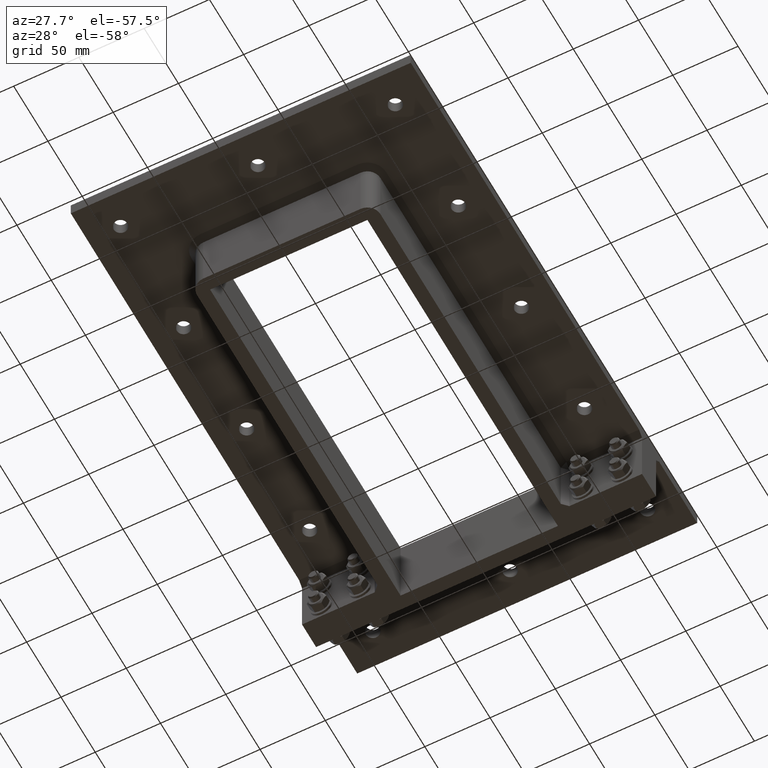
[diagram: clean part render]
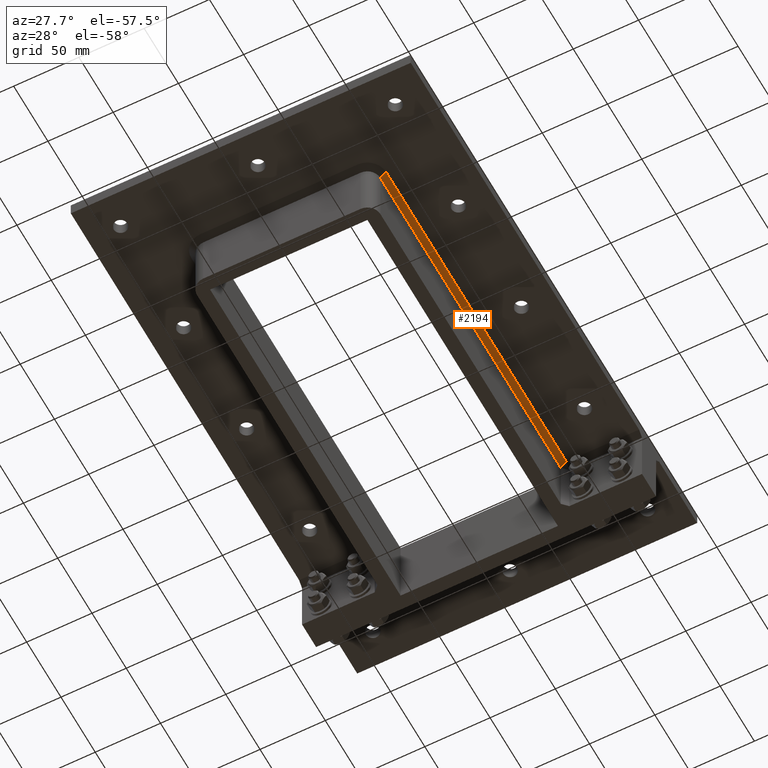
[diagram: same view with one face highlighted and labeled with its STEP entity id]
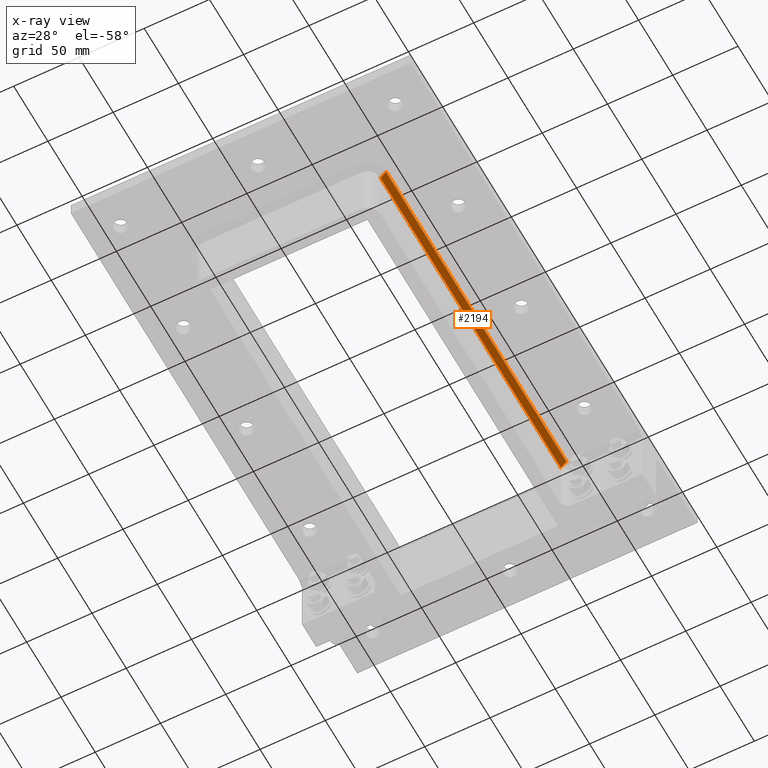
[diagram: x-ray of the same camera — body ghosted, the highlighted face saturated]
A machine part, auxiliary view. The second image highlights one B-rep face of the part: STEP entity #2194.
The next image is the same camera in x-ray: the body ghosted, the highlighted face saturated — about 0% of this face is hidden behind the body in this view.
In plain terms, the highlighted planar face has unit normal (0.7071, -0, -0.7071).
Its self-contained STEP definition (entity closure, byte-faithful):
#368=FACE_OUTER_BOUND('',#490,.T.);
#490=EDGE_LOOP('',(#1540,#1541,#1542,#1543));
#696=LINE('',#3425,#870);
#698=LINE('',#3430,#872);
#699=LINE('',#3431,#873);
#700=LINE('',#3432,#874);
#870=VECTOR('',#2751,10.);
#872=VECTOR('',#2755,10.);
#873=VECTOR('',#2756,10.);
#874=VECTOR('',#2757,10.);
#1041=VERTEX_POINT('',#3421);
#1043=VERTEX_POINT('',#3424);
#1044=VERTEX_POINT('',#3428);
#1045=VERTEX_POINT('',#3429);
#1237=EDGE_CURVE('',#1043,#1041,#696,.T.);
#1239=EDGE_CURVE('',#1044,#1045,#698,.T.);
#1240=EDGE_CURVE('',#1045,#1043,#699,.T.);
#1241=EDGE_CURVE('',#1041,#1044,#700,.T.);
#1540=ORIENTED_EDGE('',*,*,#1239,.T.);
#1541=ORIENTED_EDGE('',*,*,#1240,.T.);
#1542=ORIENTED_EDGE('',*,*,#1237,.T.);
#1543=ORIENTED_EDGE('',*,*,#1241,.T.);
#2128=PLANE('',#2487);
#2194=ADVANCED_FACE('',(#368),#2128,.T.);
#2487=AXIS2_PLACEMENT_3D('',#3427,#2753,#2754);
#2751=DIRECTION('',(0.707106781186547,-2.921102248714E-15,0.707106781186548));
#2753=DIRECTION('center_axis',(0.707106781186548,-6.77737751949831E-17,
-0.707106781186547));
#2754=DIRECTION('ref_axis',(-0.707106781186547,0.,-0.707106781186548));
#2755=DIRECTION('',(-0.707106781186547,2.921102248714E-15,-0.707106781186548));
#2756=DIRECTION('',(9.58465920539703E-17,1.,0.));
#2757=DIRECTION('',(-9.58465920539703E-17,-1.,0.));
#3421=CARTESIAN_POINT('',(74.55,124.2,-10.));
#3424=CARTESIAN_POINT('',(70.25,124.2,-14.3));
#3425=CARTESIAN_POINT('',(70.25,124.2,-14.3));
#3427=CARTESIAN_POINT('Origin',(72.4,69.5,-12.15));
#3428=CARTESIAN_POINT('',(74.55,-139.,-10.));
#3429=CARTESIAN_POINT('',(70.25,-139.,-14.3));
#3430=CARTESIAN_POINT('',(74.55,-139.,-10.));
#3431=CARTESIAN_POINT('',(70.25,69.5,-14.3));
#3432=CARTESIAN_POINT('',(74.55,69.5,-10.));